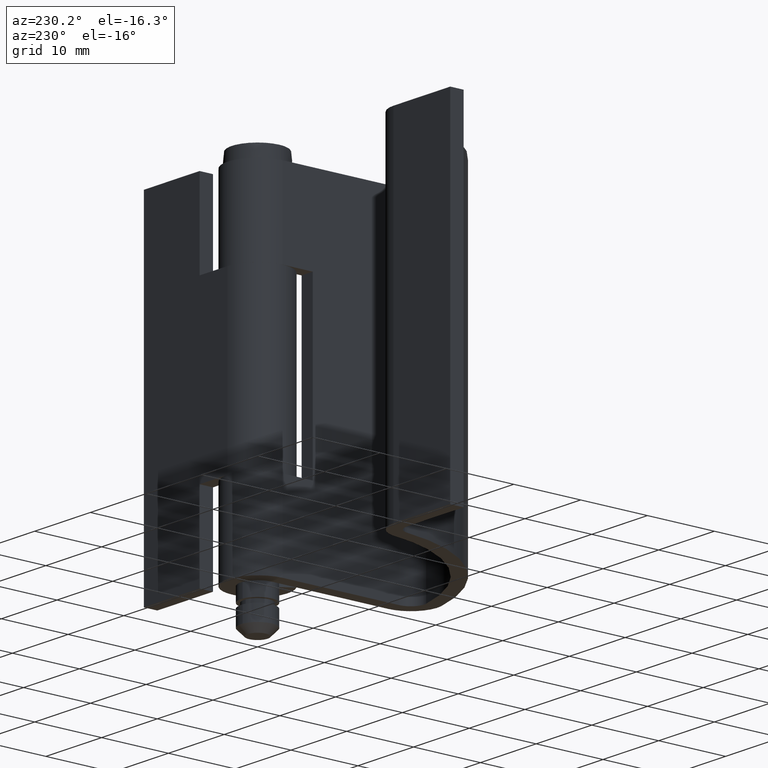
[diagram: clean part render]
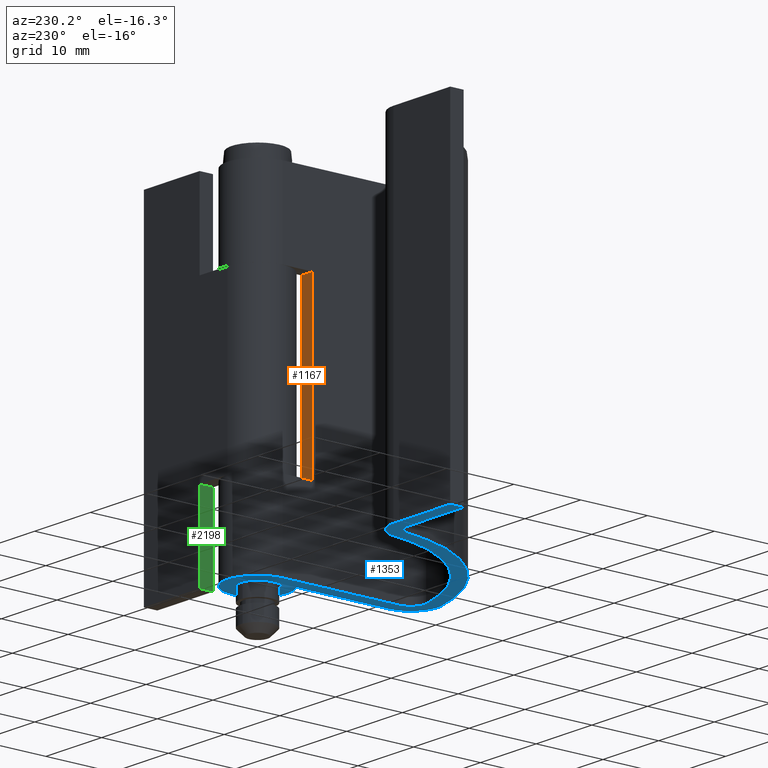
[diagram: same view with three faces highlighted in distinct colors, each labeled with its STEP entity id]
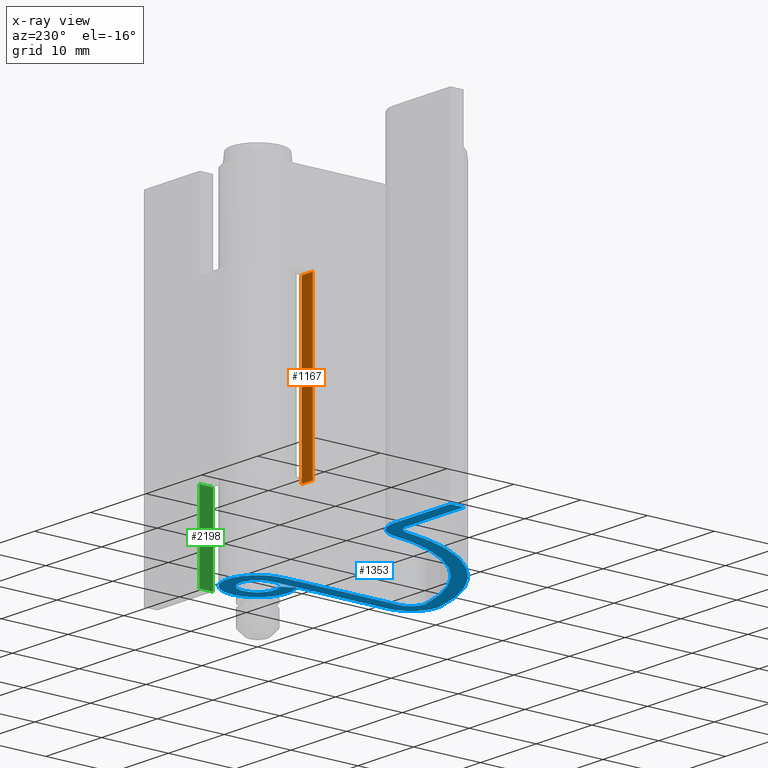
[diagram: x-ray of the same camera — body ghosted, the three highlighted faces saturated]
A machine part, auxiliary view with three faces highlighted in distinct colors.
The next image is the same camera in x-ray (body ghosted, the three faces saturated) — at least one of them is partly hidden behind the body in this view.
Their STEP definitions:

[orange] entity #1167 — the highlighted face is a freeform B-spline surface patch.
#1048=CARTESIAN_POINT('',(-4.499993000000105,-4.500000000000000,18.500000000000000));
#1049=VERTEX_POINT('',#1048);
#1055=CARTESIAN_POINT('',(-2.500000000000000,-4.500000000000000,18.500000000000000));
#1056=VERTEX_POINT('',#1055);
#1057=CARTESIAN_POINT('',(-2.500000000000000,-4.500000000000000,18.500000000000000));
#1058=CARTESIAN_POINT('',(-4.499993000000105,-4.500000000000000,18.500000000000000));
#1059=QUASI_UNIFORM_CURVE('',1,(#1057,#1058),.UNSPECIFIED.,.F.,.U.);
#1060=EDGE_CURVE('',#1056,#1049,#1059,.T.);
#1077=CARTESIAN_POINT('',(-2.500000000000000,-4.500000000000000,43.500000000000000));
#1078=VERTEX_POINT('',#1077);
#1084=CARTESIAN_POINT('',(-4.499993000000105,-4.500000000000000,43.500000000000000));
#1085=VERTEX_POINT('',#1084);
#1086=CARTESIAN_POINT('',(-2.500000000000000,-4.500000000000000,43.500000000000000));
#1087=CARTESIAN_POINT('',(-4.499993000000105,-4.500000000000000,43.500000000000000));
#1088=QUASI_UNIFORM_CURVE('',1,(#1086,#1087),.UNSPECIFIED.,.F.,.U.);
#1089=EDGE_CURVE('',#1078,#1085,#1088,.T.);
#1148=CARTESIAN_POINT('',(-4.599892496277709,-4.500000000000000,44.748749951545157));
#1149=CARTESIAN_POINT('',(-4.599892496277709,-4.500000000000000,17.251249377902599));
#1150=CARTESIAN_POINT('',(-2.400100307027757,-4.500000000000000,44.748749951545157));
#1151=CARTESIAN_POINT('',(-2.400100307027757,-4.500000000000000,17.251249377902599));
#1152=B_SPLINE_SURFACE_WITH_KNOTS('',1,1,((#1148,#1150),(#1149,#1151)),.UNSPECIFIED.,.F.,.F.,.U.,(2,2),(2,2),(0.0,27.497500573642562),(0.0,2.199792189249953),.UNSPECIFIED.);
#1153=ORIENTED_EDGE('',*,*,#1060,.T.);
#1154=CARTESIAN_POINT('',(-4.499993000000105,-4.500000000000000,43.500000000000000));
#1155=CARTESIAN_POINT('',(-4.499993000000105,-4.500000000000000,18.500000000000000));
#1156=QUASI_UNIFORM_CURVE('',1,(#1154,#1155),.UNSPECIFIED.,.F.,.U.);
#1157=EDGE_CURVE('',#1085,#1049,#1156,.T.);
#1158=ORIENTED_EDGE('',*,*,#1157,.F.);
#1159=ORIENTED_EDGE('',*,*,#1089,.F.);
#1160=CARTESIAN_POINT('',(-2.500000000000000,-4.500000000000000,18.500000000000000));
#1161=CARTESIAN_POINT('',(-2.500000000000000,-4.500000000000000,43.500000000000000));
#1162=QUASI_UNIFORM_CURVE('',1,(#1160,#1161),.UNSPECIFIED.,.F.,.U.);
#1163=EDGE_CURVE('',#1056,#1078,#1162,.T.);
#1164=ORIENTED_EDGE('',*,*,#1163,.F.);
#1165=EDGE_LOOP('',(#1153,#1158,#1159,#1164));
#1166=FACE_OUTER_BOUND('',#1165,.T.);
#1167=ADVANCED_FACE('',(#1166),#1152,.F.);

[blue] entity #1353 — the highlighted face is a freeform B-spline surface patch.
#1168=CARTESIAN_POINT('',(-42.222652204787302,-22.797214004661679,6.0));
#1169=CARTESIAN_POINT('',(6.720359662914555,-22.797214004661679,6.0));
#1170=CARTESIAN_POINT('',(-42.222652204787302,5.798629955055823,6.0));
#1171=CARTESIAN_POINT('',(6.720359662914555,5.798629955055823,6.0));
#1172=B_SPLINE_SURFACE_WITH_KNOTS('',1,1,((#1168,#1170),(#1169,#1171)),.UNSPECIFIED.,.F.,.F.,.U.,(2,2),(2,2),(0.0,48.943011867701848),(0.0,28.595843959717499),.UNSPECIFIED.);
#1173=CARTESIAN_POINT('',(-29.820664209439549,4.500000000000000,6.0));
#1174=VERTEX_POINT('',#1173);
#1175=CARTESIAN_POINT('',(-39.999993000000003,4.500000000000000,6.0));
#1176=VERTEX_POINT('',#1175);
#1177=CARTESIAN_POINT('',(-29.820664209439549,4.500000000000000,6.0));
#1178=CARTESIAN_POINT('',(-39.999993000000003,4.500000000000000,6.0));
#1179=QUASI_UNIFORM_CURVE('',1,(#1177,#1178),.UNSPECIFIED.,.F.,.U.);
#1180=EDGE_CURVE('',#1174,#1176,#1179,.T.);
#1181=ORIENTED_EDGE('',*,*,#1180,.F.);
#1182=CARTESIAN_POINT('',(-25.852835573517201,1.006345184720640,6.0));
#1183=VERTEX_POINT('',#1182);
#1184=CARTESIAN_POINT('',(-29.820664209439549,4.500000000000000,6.0));
#1185=CARTESIAN_POINT('',(-26.298673284934917,4.500000563125340,6.0));
#1186=CARTESIAN_POINT('',(-25.852835573517201,1.006345184720640,6.0));
#1194=(BOUNDED_CURVE()B_SPLINE_CURVE(2,(#1184,#1185,#1186),.UNSPECIFIED.,.F.,.U.)CURVE()GEOMETRIC_REPRESENTATION_ITEM()QUASI_UNIFORM_CURVE()RATIONAL_B_SPLINE_CURVE((1.0,0.750528498754128,1.0))REPRESENTATION_ITEM(''));
#1195=EDGE_CURVE('',#1174,#1183,#1194,.T.);
#1196=ORIENTED_EDGE('',*,*,#1195,.T.);
#1197=CARTESIAN_POINT('',(-6.904910363566900,-19.458581611442849,6.0));
#1198=VERTEX_POINT('',#1197);
#1199=CARTESIAN_POINT('',(-6.904910363566900,-19.458581611442849,6.0));
#1200=CARTESIAN_POINT('',(-23.683936816698324,-15.989681057232188,6.0));
#1201=CARTESIAN_POINT('',(-25.852835573517201,1.006345184720640,6.0));
#1209=(BOUNDED_CURVE()B_SPLINE_CURVE(2,(#1199,#1200,#1201),.UNSPECIFIED.,.F.,.U.)CURVE()GEOMETRIC_REPRESENTATION_ITEM()QUASI_UNIFORM_CURVE()RATIONAL_B_SPLINE_CURVE((1.0,0.813877827900370,1.0))REPRESENTATION_ITEM(''));
#1210=EDGE_CURVE('',#1198,#1183,#1209,.T.);
#1211=ORIENTED_EDGE('',*,*,#1210,.F.);
#1212=CARTESIAN_POINT('',(-4.499993000000105,-17.500000000000000,6.0));
#1213=VERTEX_POINT('',#1212);
#1214=CARTESIAN_POINT('',(-4.499993000000105,-17.500000000000000,6.0));
#1215=CARTESIAN_POINT('',(-4.499993000000000,-18.450533771478657,6.0));
#1216=CARTESIAN_POINT('',(-5.237027190315073,-19.050779598642858,6.0));
#1217=CARTESIAN_POINT('',(-5.974061380630147,-19.651025425807052,6.0));
#1218=CARTESIAN_POINT('',(-6.904910363566899,-19.458581611442838,6.0));
#1226=(BOUNDED_CURVE()B_SPLINE_CURVE(2,(#1214,#1215,#1216,#1217,#1218),.UNSPECIFIED.,.F.,.U.)B_SPLINE_CURVE_WITH_KNOTS((3,2,3),(0.0,0.500000000000000,1.0),.UNSPECIFIED.)CURVE()GEOMETRIC_REPRESENTATION_ITEM()RATIONAL_B_SPLINE_CURVE((1.0,0.903184063422972,1.0,0.903184063422972,1.0))REPRESENTATION_ITEM(''));
#1227=EDGE_CURVE('',#1213,#1198,#1226,.T.);
#1228=ORIENTED_EDGE('',*,*,#1227,.F.);
#1229=CARTESIAN_POINT('',(-4.499993000000105,0.007937250788184,6.0));
#1230=VERTEX_POINT('',#1229);
#1231=CARTESIAN_POINT('',(-4.499993000000105,0.007937250788184,6.0));
#1232=CARTESIAN_POINT('',(-4.499993000000105,-17.500000000000000,6.0));
#1233=QUASI_UNIFORM_CURVE('',1,(#1231,#1232),.UNSPECIFIED.,.F.,.U.);
#1234=EDGE_CURVE('',#1230,#1213,#1233,.T.);
#1235=ORIENTED_EDGE('',*,*,#1234,.F.);
#1236=CARTESIAN_POINT('',(-2.450000000000000,-3.774586070021455,6.0));
#1237=VERTEX_POINT('',#1236);
#1238=CARTESIAN_POINT('',(-4.499993000000102,0.007937250788183,6.0));
#1239=CARTESIAN_POINT('',(-4.493822756544990,3.506132419024598,6.0));
#1240=CARTESIAN_POINT('',(-1.102172134321137,4.362936692908344,6.0));
#1241=CARTESIAN_POINT('',(2.289478487902719,5.219740966792087,6.0));
#1242=CARTESIAN_POINT('',(3.956320429784447,2.144184846712196,6.0));
#1243=CARTESIAN_POINT('',(5.623162371666175,-0.931371273367695,6.0));
#1244=CARTESIAN_POINT('',(3.053721107188657,-3.305266615495712,6.0));
#1245=CARTESIAN_POINT('',(0.484279842711142,-5.679161957623728,6.0));
#1246=CARTESIAN_POINT('',(-2.449999999999998,-3.774586070021454,6.0));
#1254=(BOUNDED_CURVE()B_SPLINE_CURVE(2,(#1238,#1239,#1240,#1241,#1242,#1243,#1244,#1245,#1246),.UNSPECIFIED.,.F.,.U.)B_SPLINE_CURVE_WITH_KNOTS((3,2,2,2,3),(0.0,0.250000000000000,0.500000000000000,0.750000000000000,1.0),.UNSPECIFIED.)CURVE()GEOMETRIC_REPRESENTATION_ITEM()RATIONAL_B_SPLINE_CURVE((1.0,0.789505183556661,1.0,0.789505183556661,1.0,0.789505183556661,1.0,0.789505183556661,1.0))REPRESENTATION_ITEM(''));
#1255=EDGE_CURVE('',#1230,#1237,#1254,.T.);
#1256=ORIENTED_EDGE('',*,*,#1255,.T.);
#1257=CARTESIAN_POINT('',(-1.361111111111110,-2.096992261123030,6.0));
#1258=VERTEX_POINT('',#1257);
#1259=CARTESIAN_POINT('',(-1.361111111111110,-2.096992261123030,6.0));
#1260=CARTESIAN_POINT('',(-2.450000000000000,-3.774586070021455,6.0));
#1261=QUASI_UNIFORM_CURVE('',1,(#1259,#1260),.UNSPECIFIED.,.F.,.U.);
#1262=EDGE_CURVE('',#1258,#1237,#1261,.T.);
#1263=ORIENTED_EDGE('',*,*,#1262,.F.);
#1264=CARTESIAN_POINT('',(-2.500000000000000,0.0,6.0));
#1265=VERTEX_POINT('',#1264);
#1266=CARTESIAN_POINT('',(-2.500000000000000,0.0,6.0));
#1267=CARTESIAN_POINT('',(-2.500000000000000,1.944329231287351,6.0));
#1268=CARTESIAN_POINT('',(-0.615523773155828,2.423041577167015,6.0));
#1269=CARTESIAN_POINT('',(1.268952453688345,2.901753923046680,6.0));
#1270=CARTESIAN_POINT('',(2.196904387744011,1.193151755273030,6.0));
#1271=CARTESIAN_POINT('',(3.124856321799677,-0.515450412500620,6.0));
#1272=CARTESIAN_POINT('',(1.697321275561255,-1.835510960884493,6.0));
#1273=CARTESIAN_POINT('',(0.269786229322835,-3.155571509268365,6.0));
#1274=CARTESIAN_POINT('',(-1.361111111111111,-2.096992261123030,6.0));
#1282=(BOUNDED_CURVE()B_SPLINE_CURVE(2,(#1266,#1267,#1268,#1269,#1270,#1271,#1272,#1273,#1274),.UNSPECIFIED.,.F.,.U.)B_SPLINE_CURVE_WITH_KNOTS((3,2,2,2,3),(0.0,0.250000000000000,0.500000000000000,0.750000000000000,1.0),.UNSPECIFIED.)CURVE()GEOMETRIC_REPRESENTATION_ITEM()RATIONAL_B_SPLINE_CURVE((1.0,0.789369846542903,1.0,0.789369846542903,1.0,0.789369846542903,1.0,0.789369846542903,1.0))REPRESENTATION_ITEM(''));
#1283=EDGE_CURVE('',#1265,#1258,#1282,.T.);
#1284=ORIENTED_EDGE('',*,*,#1283,.F.);
#1285=CARTESIAN_POINT('',(-2.500000000000000,-17.507483311497950,6.0));
#1286=VERTEX_POINT('',#1285);
#1287=CARTESIAN_POINT('',(-2.500000000000000,-17.507483311497950,6.0));
#1288=CARTESIAN_POINT('',(-2.500000000000000,0.0,6.0));
#1289=QUASI_UNIFORM_CURVE('',1,(#1287,#1288),.UNSPECIFIED.,.F.,.U.);
#1290=EDGE_CURVE('',#1286,#1265,#1289,.T.);
#1291=ORIENTED_EDGE('',*,*,#1290,.F.);
#1292=CARTESIAN_POINT('',(-7.309824726369710,-21.417161948756899,6.0));
#1293=VERTEX_POINT('',#1292);
#1294=CARTESIAN_POINT('',(-2.500000000000000,-17.507483311497950,6.0));
#1295=CARTESIAN_POINT('',(-2.503552206249668,-19.406253458855335,5.999999999999999));
#1296=CARTESIAN_POINT('',(-3.976962500816998,-20.603918879178291,6.0));
#1297=CARTESIAN_POINT('',(-5.450372795384328,-21.801584299501240,5.999999999999999));
#1298=CARTESIAN_POINT('',(-7.309824726369710,-21.417161948756899,6.0));
#1306=(BOUNDED_CURVE()B_SPLINE_CURVE(2,(#1294,#1295,#1296,#1297,#1298),.UNSPECIFIED.,.F.,.U.)B_SPLINE_CURVE_WITH_KNOTS((3,2,3),(0.0,0.500000000000000,1.0),.UNSPECIFIED.)CURVE()GEOMETRIC_REPRESENTATION_ITEM()RATIONAL_B_SPLINE_CURVE((1.0,0.903384801436477,1.0,0.903384801436477,1.0))REPRESENTATION_ITEM(''));
#1307=EDGE_CURVE('',#1286,#1293,#1306,.T.);
#1308=ORIENTED_EDGE('',*,*,#1307,.T.);
#1309=CARTESIAN_POINT('',(-27.836752632129599,0.753171255150635,6.0));
#1310=VERTEX_POINT('',#1309);
#1311=CARTESIAN_POINT('',(-7.309824726369710,-21.417161948756899,6.0));
#1312=CARTESIAN_POINT('',(-25.487107615552773,-17.659189609035479,6.0));
#1313=CARTESIAN_POINT('',(-27.836752632129599,0.753171255150635,6.0));
#1321=(BOUNDED_CURVE()B_SPLINE_CURVE(2,(#1311,#1312,#1313),.UNSPECIFIED.,.F.,.U.)CURVE()GEOMETRIC_REPRESENTATION_ITEM()QUASI_UNIFORM_CURVE()RATIONAL_B_SPLINE_CURVE((1.0,0.813877818215040,1.0))REPRESENTATION_ITEM(''));
#1322=EDGE_CURVE('',#1293,#1310,#1321,.T.);
#1323=ORIENTED_EDGE('',*,*,#1322,.T.);
#1324=CARTESIAN_POINT('',(-29.820664000000001,2.500000000000000,6.0));
#1325=VERTEX_POINT('',#1324);
#1326=CARTESIAN_POINT('',(-29.820664000000001,2.500000000000000,6.0));
#1327=CARTESIAN_POINT('',(-28.059669256848284,2.500000000000000,6.0));
#1328=CARTESIAN_POINT('',(-27.836752632129588,0.753171255150637,6.0));
#1336=(BOUNDED_CURVE()B_SPLINE_CURVE(2,(#1326,#1327,#1328),.UNSPECIFIED.,.F.,.U.)CURVE()GEOMETRIC_REPRESENTATION_ITEM()QUASI_UNIFORM_CURVE()RATIONAL_B_SPLINE_CURVE((1.0,0.750528356418103,1.0))REPRESENTATION_ITEM(''));
#1337=EDGE_CURVE('',#1325,#1310,#1336,.T.);
#1338=ORIENTED_EDGE('',*,*,#1337,.F.);
#1339=CARTESIAN_POINT('',(-39.999993000000003,2.500000000000000,6.0));
#1340=VERTEX_POINT('',#1339);
#1341=CARTESIAN_POINT('',(-39.999993000000003,2.500000000000000,6.0));
#1342=CARTESIAN_POINT('',(-29.820664000000001,2.500000000000000,6.0));
#1343=QUASI_UNIFORM_CURVE('',1,(#1341,#1342),.UNSPECIFIED.,.F.,.U.);
#1344=EDGE_CURVE('',#1340,#1325,#1343,.T.);
#1345=ORIENTED_EDGE('',*,*,#1344,.F.);
#1346=CARTESIAN_POINT('',(-39.999993000000003,4.500000000000000,6.0));
#1347=CARTESIAN_POINT('',(-39.999993000000003,2.500000000000000,6.0));
#1348=QUASI_UNIFORM_CURVE('',1,(#1346,#1347),.UNSPECIFIED.,.F.,.U.);
#1349=EDGE_CURVE('',#1176,#1340,#1348,.T.);
#1350=ORIENTED_EDGE('',*,*,#1349,.F.);
#1351=EDGE_LOOP('',(#1181,#1196,#1211,#1228,#1235,#1256,#1263,#1284,#1291,#1308,#1323,#1338,#1345,#1350));
#1352=FACE_OUTER_BOUND('',#1351,.T.);
#1353=ADVANCED_FACE('',(#1352),#1172,.F.);

[green] entity #2198 — the highlighted face is a freeform B-spline surface patch.
#2149=CARTESIAN_POINT('',(4.999999999999800,4.500000000000000,18.500000000000000));
#2150=VERTEX_POINT('',#2149);
#2156=CARTESIAN_POINT('',(4.999999999999800,2.500000000000000,18.500000000000000));
#2157=VERTEX_POINT('',#2156);
#2158=CARTESIAN_POINT('',(4.999999999999800,2.500000000000000,18.500000000000000));
#2159=CARTESIAN_POINT('',(4.999999999999800,4.500000000000000,18.500000000000000));
#2160=QUASI_UNIFORM_CURVE('',1,(#2158,#2159),.UNSPECIFIED.,.F.,.U.);
#2161=EDGE_CURVE('',#2157,#2150,#2160,.T.);
#2171=CARTESIAN_POINT('',(4.999999999999800,2.400100003876388,5.375625024227424));
#2172=CARTESIAN_POINT('',(4.999999999999800,2.400100003876388,19.124375311048709));
#2173=CARTESIAN_POINT('',(4.999999999999800,4.599900049767792,5.375625024227424));
#2174=CARTESIAN_POINT('',(4.999999999999800,4.599900049767792,19.124375311048709));
#2175=B_SPLINE_SURFACE_WITH_KNOTS('',1,1,((#2171,#2173),(#2172,#2174)),.UNSPECIFIED.,.F.,.F.,.U.,(2,2),(2,2),(0.0,13.748750286821281),(0.0,2.199800045891405),.UNSPECIFIED.);
#2176=CARTESIAN_POINT('',(4.999999999999800,2.500000000000000,6.0));
#2177=VERTEX_POINT('',#2176);
#2178=CARTESIAN_POINT('',(4.999999999999800,4.500000000000000,6.0));
#2179=VERTEX_POINT('',#2178);
#2180=CARTESIAN_POINT('',(4.999999999999800,2.500000000000000,6.0));
#2181=CARTESIAN_POINT('',(4.999999999999800,4.500000000000000,6.0));
#2182=QUASI_UNIFORM_CURVE('',1,(#2180,#2181),.UNSPECIFIED.,.F.,.U.);
#2183=EDGE_CURVE('',#2177,#2179,#2182,.T.);
#2184=ORIENTED_EDGE('',*,*,#2183,.F.);
#2185=CARTESIAN_POINT('',(4.999999999999800,2.500000000000000,18.500000000000000));
#2186=CARTESIAN_POINT('',(4.999999999999800,2.500000000000000,6.0));
#2187=QUASI_UNIFORM_CURVE('',1,(#2185,#2186),.UNSPECIFIED.,.F.,.U.);
#2188=EDGE_CURVE('',#2157,#2177,#2187,.T.);
#2189=ORIENTED_EDGE('',*,*,#2188,.F.);
#2190=ORIENTED_EDGE('',*,*,#2161,.T.);
#2191=CARTESIAN_POINT('',(4.999999999999800,4.500000000000000,18.500000000000000));
#2192=CARTESIAN_POINT('',(4.999999999999800,4.500000000000000,6.0));
#2193=QUASI_UNIFORM_CURVE('',1,(#2191,#2192),.UNSPECIFIED.,.F.,.U.);
#2194=EDGE_CURVE('',#2150,#2179,#2193,.T.);
#2195=ORIENTED_EDGE('',*,*,#2194,.T.);
#2196=EDGE_LOOP('',(#2184,#2189,#2190,#2195));
#2197=FACE_OUTER_BOUND('',#2196,.T.);
#2198=ADVANCED_FACE('',(#2197),#2175,.T.);